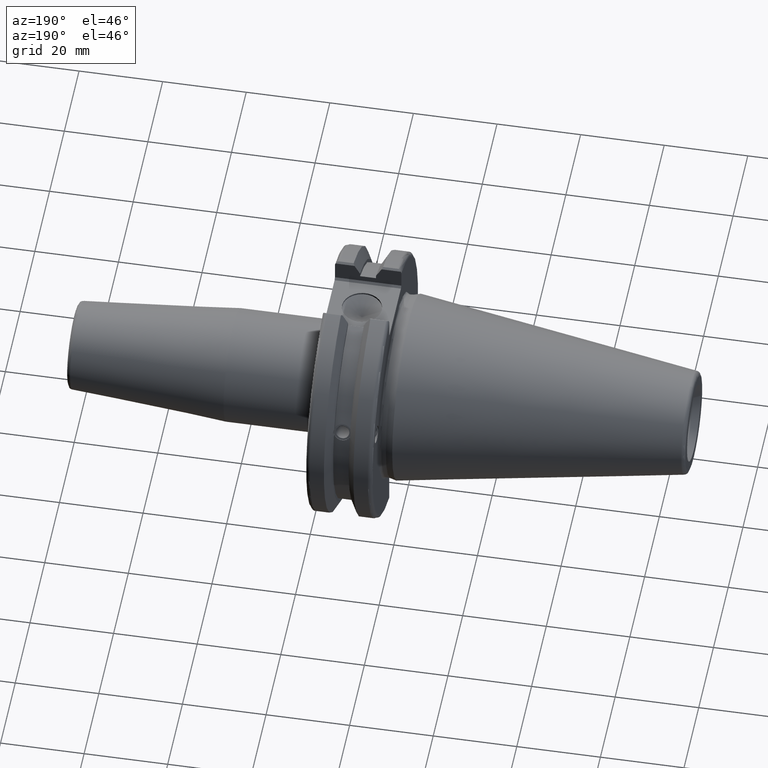
[diagram: clean part render]
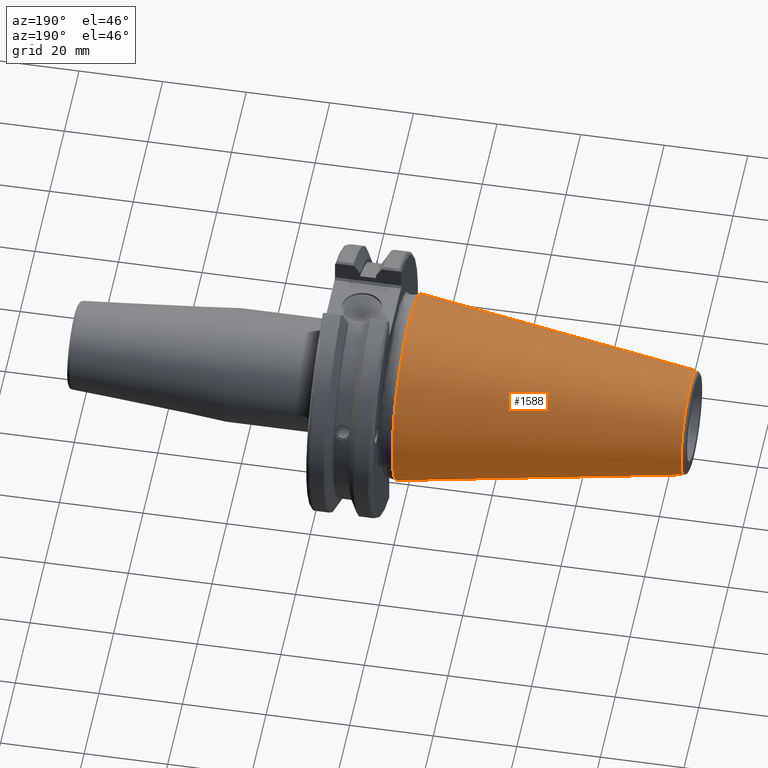
[diagram: same view with one face highlighted and labeled with its STEP entity id]
A machine part, auxiliary view. The second image highlights one B-rep face of the part: STEP entity #1588.
In plain terms, the highlighted conical surface has half-angle 8.297 deg.
Its self-contained STEP definition (entity closure, byte-faithful):
#236=FACE_OUTER_BOUND('',#342,.T.);
#342=EDGE_LOOP('',(#1381,#1382,#1383,#1384,#1385));
#449=LINE('',#3012,#545);
#545=VECTOR('',#2198,17.2484375);
#624=CIRCLE('',#1779,12.3966635780937);
#625=CIRCLE('',#1780,12.3966635780937);
#629=CIRCLE('',#1786,22.225);
#784=VERTEX_POINT('',#2999);
#785=VERTEX_POINT('',#3000);
#788=VERTEX_POINT('',#3010);
#998=EDGE_CURVE('',#784,#785,#624,.T.);
#999=EDGE_CURVE('',#785,#784,#625,.T.);
#1003=EDGE_CURVE('',#788,#788,#629,.T.);
#1004=EDGE_CURVE('',#788,#785,#449,.T.);
#1381=ORIENTED_EDGE('',*,*,#1003,.F.);
#1382=ORIENTED_EDGE('',*,*,#1004,.T.);
#1383=ORIENTED_EDGE('',*,*,#998,.F.);
#1384=ORIENTED_EDGE('',*,*,#999,.F.);
#1385=ORIENTED_EDGE('',*,*,#1004,.F.);
#1521=CONICAL_SURFACE('',#1785,17.2484375,0.144812498238939);
#1588=ADVANCED_FACE('',(#236),#1521,.T.);
#1779=AXIS2_PLACEMENT_3D('',#3001,#2182,#2183);
#1780=AXIS2_PLACEMENT_3D('',#3002,#2184,#2185);
#1785=AXIS2_PLACEMENT_3D('',#3009,#2194,#2195);
#1786=AXIS2_PLACEMENT_3D('',#3011,#2196,#2197);
#2182=DIRECTION('center_axis',(-1.,0.,0.));
#2183=DIRECTION('ref_axis',(0.,-1.,3.06161699786838E-17));
#2184=DIRECTION('center_axis',(-1.,0.,0.));
#2185=DIRECTION('ref_axis',(0.,-1.,3.06161699786838E-17));
#2194=DIRECTION('center_axis',(1.,0.,0.));
#2195=DIRECTION('ref_axis',(0.,1.,0.));
#2196=DIRECTION('center_axis',(1.,0.,0.));
#2197=DIRECTION('ref_axis',(0.,0.,-1.));
#2198=DIRECTION('',(-0.989532981063282,0.144306893071729,1.76724974695192E-17));
#2999=CARTESIAN_POINT('',(-67.3943068930717,-1.5181534371019E-15,12.3966635780937));
#3000=CARTESIAN_POINT('',(-67.3943068930718,-12.3966635780937,-1.5181534371019E-15));
#3001=CARTESIAN_POINT('Origin',(-67.3943068930717,0.,-1.89769179637738E-15));
#3002=CARTESIAN_POINT('Origin',(-67.3943068930717,0.,-1.89769179637738E-15));
#3009=CARTESIAN_POINT('Origin',(-34.125,0.,0.));
#3010=CARTESIAN_POINT('',(0.,-22.225,-2.72177751110499E-15));
#3011=CARTESIAN_POINT('Origin',(0.,0.,0.));
#3012=CARTESIAN_POINT('',(-34.125,-17.2484375,-2.11232437746682E-15));